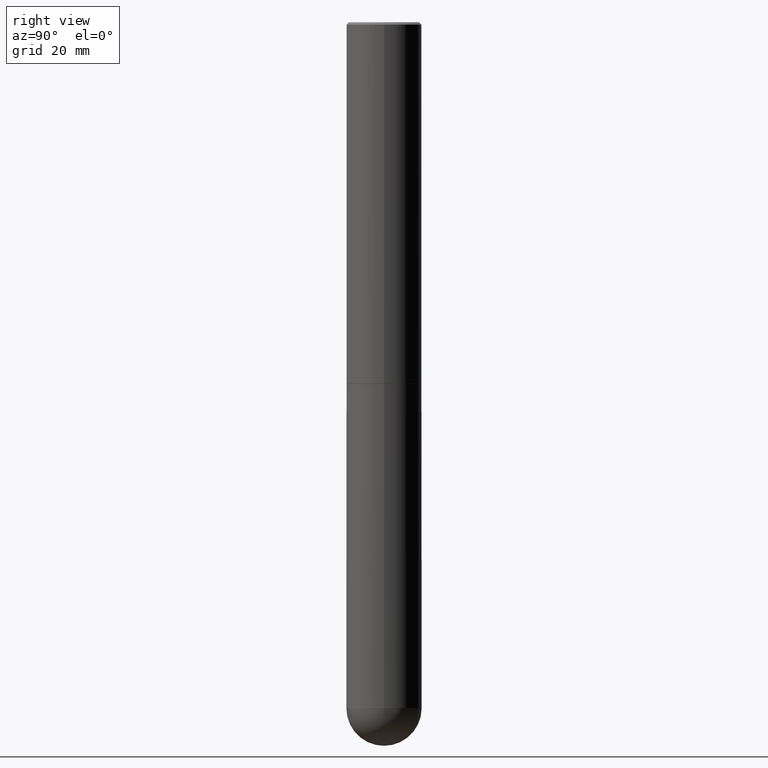
[diagram: clean part render]
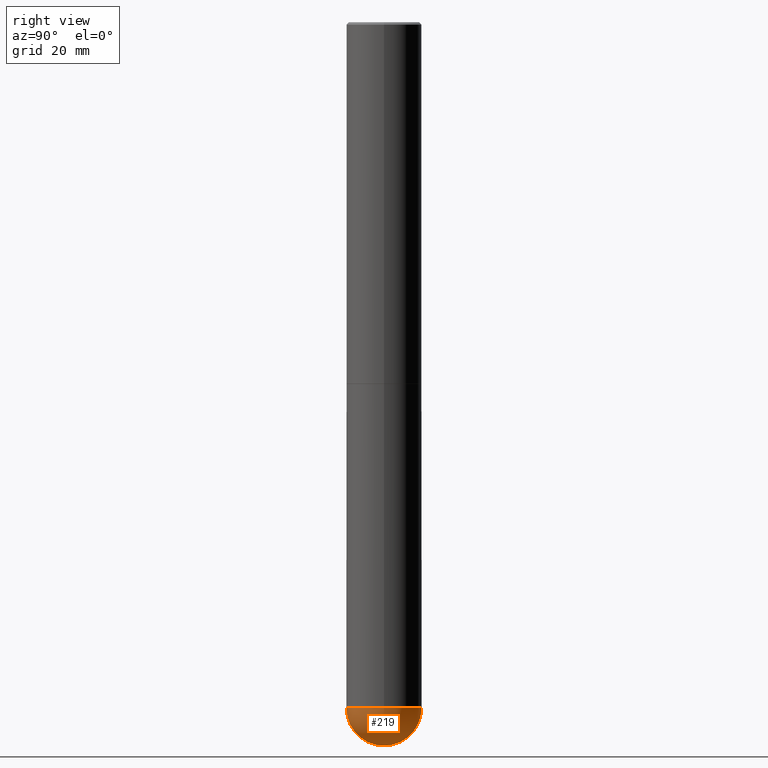
[diagram: same view with one face highlighted and labeled with its STEP entity id]
A machine part, right view. The second image highlights one B-rep face of the part: STEP entity #219.
In plain terms, the highlighted spherical surface has radius 7.9375 mm.
Its self-contained STEP definition (entity closure, byte-faithful):
#11 = CIRCLE ( 'NONE', #314, 0.3124999999999994449 ) ;
#13 = CARTESIAN_POINT ( 'NONE',  ( -2.220446049250173452E-15, -0.3125000000000198175, -5.687500000000000888 ) ) ;
#19 = EDGE_CURVE ( 'NONE', #21, #48, #32, .T. ) ;
#20 = ORIENTED_EDGE ( 'NONE', *, *, #229, .T. ) ;
#21 = VERTEX_POINT ( 'NONE', #134 ) ;
#32 = CIRCLE ( 'NONE', #286, 0.3124999999999994449 ) ;
#48 = VERTEX_POINT ( 'NONE', #13 ) ;
#52 = DIRECTION ( 'NONE',  ( -7.105427357601000281E-15, -1.000000000000000000, 0.000000000000000000 ) ) ;
#103 = ORIENTED_EDGE ( 'NONE', *, *, #19, .F. ) ;
#107 = DIRECTION ( 'NONE',  ( -1.000000000000000000, 7.105427357601001070E-15, -4.926315508542082329E-29 ) ) ;
#108 = ORIENTED_EDGE ( 'NONE', *, *, #322, .F. ) ;
#112 = CARTESIAN_POINT ( 'NONE',  ( 1.390860383517796888E-28, -1.985780011467040063E-14, -5.687500000000001776 ) ) ;
#114 = CARTESIAN_POINT ( 'NONE',  ( 0.3125000000000000000, -1.734829790237687605E-14, -5.687500000000001776 ) ) ;
#115 = DIRECTION ( 'NONE',  ( 6.982962677686265922E-15, 1.000000000000000000, -3.496765431890262836E-15 ) ) ;
#117 = DIRECTION ( 'NONE',  ( -2.445468806185136597E-29, 3.491481338843145583E-15, 1.000000000000000000 ) ) ;
#125 = CARTESIAN_POINT ( 'NONE',  ( 1.390860383517796888E-28, -1.985780011467040063E-14, -5.687500000000001776 ) ) ;
#134 = CARTESIAN_POINT ( 'NONE',  ( 1.435505503246536289E-28, -2.140393529496224958E-14, -6.000000000000000888 ) ) ;
#146 = DIRECTION ( 'NONE',  ( 1.000000000000000000, -6.982962677686262766E-15, 0.000000000000000000 ) ) ;
#160 = DIRECTION ( 'NONE',  ( -2.445468806185136597E-29, 3.491481338843145583E-15, 1.000000000000000000 ) ) ;
#170 = EDGE_CURVE ( 'NONE', #360, #396, #375, .T. ) ;
#183 = CIRCLE ( 'NONE', #209, 0.3125000000000000000 ) ;
#190 = AXIS2_PLACEMENT_3D ( 'NONE', #125, #160, #146 ) ;
#209 = AXIS2_PLACEMENT_3D ( 'NONE', #112, #117, #337 ) ;
#211 = SPHERICAL_SURFACE ( 'NONE', #329, 0.3124999999999994449 ) ;
#213 = CARTESIAN_POINT ( 'NONE',  ( 1.357748405726408151E-28, -2.033198248281044620E-14, -5.687500000000000888 ) ) ;
#219 = ADVANCED_FACE ( 'NONE', ( #356 ), #211, .T. ) ;
#229 = EDGE_CURVE ( 'NONE', #21, #396, #11, .T. ) ;
#259 = EDGE_LOOP ( 'NONE', ( #103, #20, #295, #108 ) ) ;
#260 = CARTESIAN_POINT ( 'NONE',  ( 1.357748405726408151E-28, -2.033198248281044620E-14, -5.687500000000000888 ) ) ;
#267 = DIRECTION ( 'NONE',  ( -1.000000000000000000, 6.982962677686265922E-15, -4.883557194083112901E-29 ) ) ;
#286 = AXIS2_PLACEMENT_3D ( 'NONE', #260, #107, #52 ) ;
#295 = ORIENTED_EDGE ( 'NONE', *, *, #170, .F. ) ;
#301 = DIRECTION ( 'NONE',  ( 1.000000000000000000, -6.982962677686265922E-15, 4.883557194083112340E-29 ) ) ;
#314 = AXIS2_PLACEMENT_3D ( 'NONE', #213, #301, #403 ) ;
#322 = EDGE_CURVE ( 'NONE', #48, #360, #183, .T. ) ;
#329 = AXIS2_PLACEMENT_3D ( 'NONE', #407, #267, #115 ) ;
#337 = DIRECTION ( 'NONE',  ( 1.000000000000000000, -6.982962677686262766E-15, 0.000000000000000000 ) ) ;
#349 = CARTESIAN_POINT ( 'NONE',  ( 2.182175836777093637E-15, 0.3124999999999796829, -5.687500000000003553 ) ) ;
#356 = FACE_OUTER_BOUND ( 'NONE', #259, .T. ) ;
#360 = VERTEX_POINT ( 'NONE', #114 ) ;
#375 = CIRCLE ( 'NONE', #190, 0.3125000000000000000 ) ;
#396 = VERTEX_POINT ( 'NONE', #349 ) ;
#403 = DIRECTION ( 'NONE',  ( 6.982962677686266711E-15, 1.000000000000000000, 0.000000000000000000 ) ) ;
#407 = CARTESIAN_POINT ( 'NONE',  ( 1.357748405726408151E-28, -2.033198248281044620E-14, -5.687500000000000888 ) ) ;